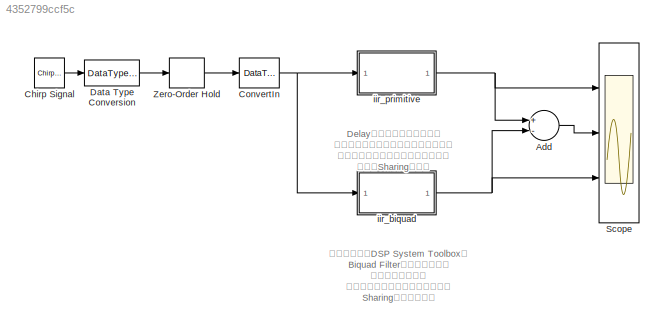
MODEL slx_4352799ccf5c
KIND model
CONFIG AbsTol = auto
CONFIG FixedStep = auto
CONFIG MaxStep = auto
CONFIG MinStep = auto
CONFIG PreLoadFcn = edit design_iir_filter
CONFIG RelTol = 1e-3
CONFIG SampleTimeConstraint = Unconstrained
CONFIG Solver = FixedStepDiscrete
CONFIG SolverMode = SingleTasking
CONFIG SolverName = FixedStepDiscrete
CONFIG StartTime = 0.0
CONFIG StopTime = 10.0
BLOCK [Sum] Add
  InputSameDT = off
  Inputs = +-
  OutDataTypeStr = Inherit: Inherit via internal rule
  Ports = [2, 1]
  SaturateOnIntegerOverflow = off
BLOCK [Reference] Chirp Signal  REF=simulink/Sources/Chirp Signal
  Ports = [0, 1]
  SourceBlock = simulink/Sources/Chirp Signal
  SourceType = chirp
BLOCK [DataTypeConversion] ConvertIn
  OutDataTypeStr = fixdt(1,16,14)
  RndMeth = Nearest
BLOCK [DataTypeConversion] Data Type Conversion
  OutDataTypeStr = fixdt(1,16,14)
  RndMeth = Nearest
  SaturateOnIntegerOverflow = off
BLOCK [Scope] Scope
  NumInputPorts = 3
  Ports = [3]
  ScopeSpecificationString = Simulink.scopes.TimeScopeBlockCfg('CurrentConfiguration', extmgr.ConfigurationSet(extmgr.Configuration('Core','General UI',true),extmgr.Configuration('Core','Source UI',true),extmgr.Configuration('Sources','WiredSimulink',true,'DataLoggingSaveFormat','StructureWithTime','DataLoggingDecimation','1','DataLoggingDecimateData',true),extmgr.Configuration('Visuals','Time Domain',true,'SerializedDisplays...<+3059ch>
BLOCK [ZeroOrderHold] Zero-Order Hold
  SampleTime = 1/1000
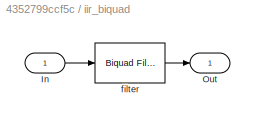
BLOCK [SubSystem] iir_biquad
  Ports = [1, 1]
  RequestExecContextInheritance = off
  Tag = BlockMethodSubSystem
  Variant = off
BLOCK [Inport] iir_biquad/In
  IconDisplay = Port number
BLOCK [Outport] iir_biquad/Out
  IconDisplay = Port number
BLOCK [Reference] iir_biquad/filter  REF=dsparch4/Biquad Filter
  Ports = [1, 1]
  SourceBlock = dsparch4/Biquad Filter
  SourceType = Biquad Filter
  UserDataPersistent = on
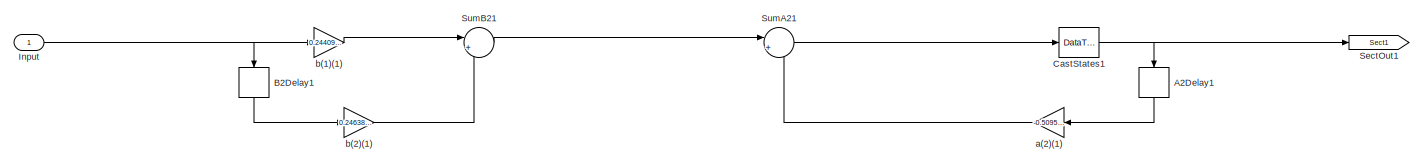
[diagram: iir_primitive - part 1/4, middle left region]
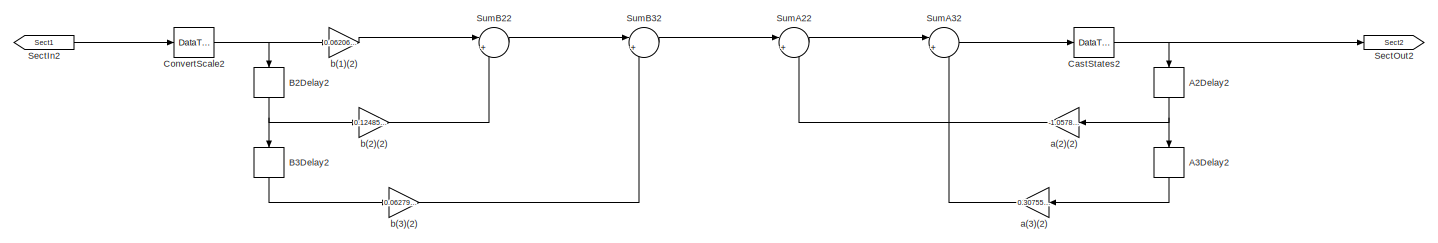
[diagram: iir_primitive - part 2/4, center side, full height]
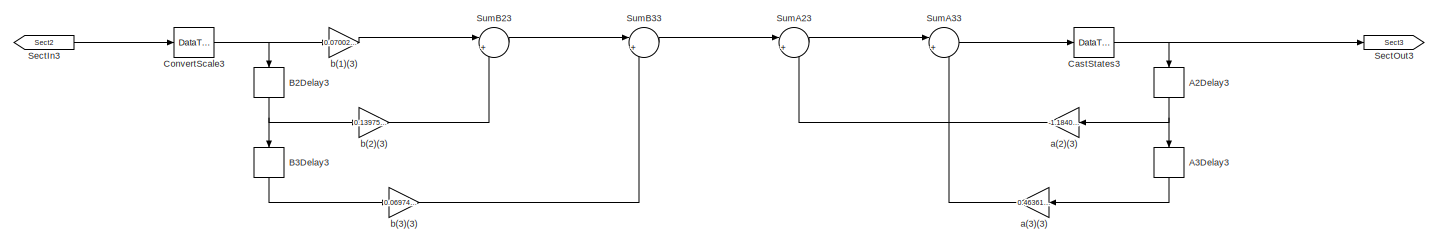
[diagram: iir_primitive - part 3/4, center side, full height]
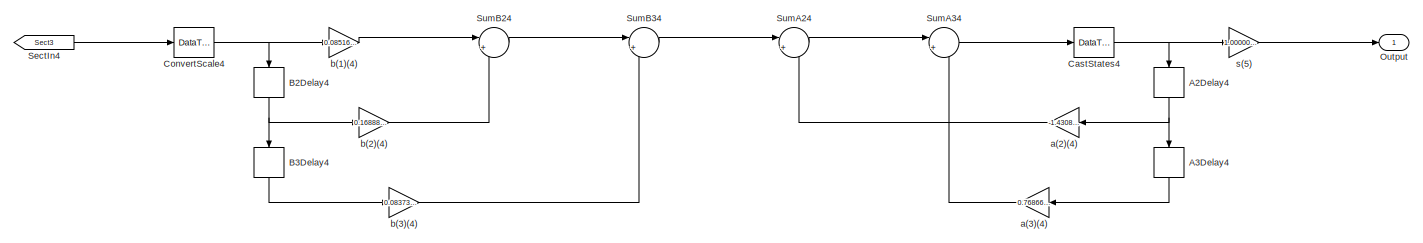
[diagram: iir_primitive - part 4/4, right side, full height]
BLOCK [SubSystem] iir_primitive
  ErrorFcn = dspFilterRealizedInBasicElemsAlgLoopErrFcnCallback
  Ports = [1, 1]
  RequestExecContextInheritance = off
  Tag = FilterWizardSubSystem
  UserDataPersistent = on
  Variant = off
BLOCK [Delay] iir_primitive/A2Delay1
  DelayLength = 1
  InitialCondition = 0
  InputPortMap = u0
  Ports = [1, 1]
BLOCK [Delay] iir_primitive/A2Delay2
  DelayLength = 1
  InitialCondition = 0
  InputPortMap = u0
  Ports = [1, 1]
BLOCK [Delay] iir_primitive/A2Delay3
  DelayLength = 1
  InitialCondition = 0
  InputPortMap = u0
  Ports = [1, 1]
BLOCK [Delay] iir_primitive/A2Delay4
  DelayLength = 1
  InitialCondition = 0
  InputPortMap = u0
  Ports = [1, 1]
BLOCK [Delay] iir_primitive/A3Delay2
  DelayLength = 1
  InitialCondition = 0
  InputPortMap = u0
  Ports = [1, 1]
BLOCK [Delay] iir_primitive/A3Delay3
  DelayLength = 1
  InitialCondition = 0
  InputPortMap = u0
  Ports = [1, 1]
BLOCK [Delay] iir_primitive/A3Delay4
  DelayLength = 1
  InitialCondition = 0
  InputPortMap = u0
  Ports = [1, 1]
BLOCK [Delay] iir_primitive/B2Delay1
  DelayLength = 1
  InitialCondition = 0
  InputPortMap = u0
  Ports = [1, 1]
BLOCK [Delay] iir_primitive/B2Delay2
  DelayLength = 1
  InitialCondition = 0
  InputPortMap = u0
  Ports = [1, 1]
BLOCK [Delay] iir_primitive/B2Delay3
  DelayLength = 1
  InitialCondition = 0
  InputPortMap = u0
  Ports = [1, 1]
BLOCK [Delay] iir_primitive/B2Delay4
  DelayLength = 1
  InitialCondition = 0
  InputPortMap = u0
  Ports = [1, 1]
BLOCK [Delay] iir_primitive/B3Delay2
  DelayLength = 1
  InitialCondition = 0
  InputPortMap = u0
  Ports = [1, 1]
BLOCK [Delay] iir_primitive/B3Delay3
  DelayLength = 1
  InitialCondition = 0
  InputPortMap = u0
  Ports = [1, 1]
BLOCK [Delay] iir_primitive/B3Delay4
  DelayLength = 1
  InitialCondition = 0
  InputPortMap = u0
  Ports = [1, 1]
BLOCK [DataTypeConversion] iir_primitive/CastStates1
  OutDataTypeStr = fixdt(1,16,14)
  RndMeth = Convergent
  SaturateOnIntegerOverflow = off
BLOCK [DataTypeConversion] iir_primitive/CastStates2
  OutDataTypeStr = fixdt(1,16,14)
  RndMeth = Convergent
  SaturateOnIntegerOverflow = off
BLOCK [DataTypeConversion] iir_primitive/CastStates3
  OutDataTypeStr = fixdt(1,16,14)
  RndMeth = Convergent
  SaturateOnIntegerOverflow = off
BLOCK [DataTypeConversion] iir_primitive/CastStates4
  OutDataTypeStr = fixdt(1,16,14)
  RndMeth = Convergent
  SaturateOnIntegerOverflow = off
BLOCK [DataTypeConversion] iir_primitive/ConvertScale2
  OutDataTypeStr = fixdt(1,16,14)
  RndMeth = Convergent
  SaturateOnIntegerOverflow = off
BLOCK [DataTypeConversion] iir_primitive/ConvertScale3
  OutDataTypeStr = fixdt(1,16,14)
  RndMeth = Convergent
  SaturateOnIntegerOverflow = off
BLOCK [DataTypeConversion] iir_primitive/ConvertScale4
  OutDataTypeStr = fixdt(1,16,14)
  RndMeth = Convergent
  SaturateOnIntegerOverflow = off
BLOCK [Inport] iir_primitive/Input
  IconDisplay = Port number
BLOCK [Outport] iir_primitive/Output
  IconDisplay = Port number
BLOCK [From] iir_primitive/SectIn2
  GotoTag = Sect1
BLOCK [From] iir_primitive/SectIn3
  GotoTag = Sect2
BLOCK [From] iir_primitive/SectIn4
  GotoTag = Sect3
BLOCK [Goto] iir_primitive/SectOut1
  GotoTag = Sect1
BLOCK [Goto] iir_primitive/SectOut2
  GotoTag = Sect2
BLOCK [Goto] iir_primitive/SectOut3
  GotoTag = Sect3
BLOCK [Sum] iir_primitive/SumA21
  AccumDataTypeStr = fixdt(1,40,30)
  IconShape = round
  InputSameDT = off
  Inputs = |+-
  OutDataTypeStr = fixdt(1,40,30)
  Ports = [2, 1]
  RndMeth = Convergent
  SaturateOnIntegerOverflow = off
BLOCK [Sum] iir_primitive/SumA22
  AccumDataTypeStr = fixdt(1,40,30)
  IconShape = round
  InputSameDT = off
  Inputs = |+-
  OutDataTypeStr = fixdt(1,40,30)
  Ports = [2, 1]
  RndMeth = Convergent
  SaturateOnIntegerOverflow = off
BLOCK [Sum] iir_primitive/SumA23
  AccumDataTypeStr = fixdt(1,40,30)
  IconShape = round
  InputSameDT = off
  Inputs = |+-
  OutDataTypeStr = fixdt(1,40,30)
  Ports = [2, 1]
  RndMeth = Convergent
  SaturateOnIntegerOverflow = off
BLOCK [Sum] iir_primitive/SumA24
  AccumDataTypeStr = fixdt(1,40,30)
  IconShape = round
  InputSameDT = off
  Inputs = |+-
  OutDataTypeStr = fixdt(1,40,30)
  Ports = [2, 1]
  RndMeth = Convergent
  SaturateOnIntegerOverflow = off
BLOCK [Sum] iir_primitive/SumA32
  AccumDataTypeStr = fixdt(1,40,30)
  IconShape = round
  InputSameDT = off
  Inputs = |+-
  OutDataTypeStr = fixdt(1,40,30)
  Ports = [2, 1]
  RndMeth = Convergent
  SaturateOnIntegerOverflow = off
BLOCK [Sum] iir_primitive/SumA33
  AccumDataTypeStr = fixdt(1,40,30)
  IconShape = round
  InputSameDT = off
  Inputs = |+-
  OutDataTypeStr = fixdt(1,40,30)
  Ports = [2, 1]
  RndMeth = Convergent
  SaturateOnIntegerOverflow = off
BLOCK [Sum] iir_primitive/SumA34
  AccumDataTypeStr = fixdt(1,40,30)
  IconShape = round
  InputSameDT = off
  Inputs = |+-
  OutDataTypeStr = fixdt(1,40,30)
  Ports = [2, 1]
  RndMeth = Convergent
  SaturateOnIntegerOverflow = off
BLOCK [Sum] iir_primitive/SumB21
  AccumDataTypeStr = fixdt(1,40,33)
  IconShape = round
  InputSameDT = off
  Inputs = |++
  OutDataTypeStr = fixdt(1,40,33)
  Ports = [2, 1]
  RndMeth = Convergent
  SaturateOnIntegerOverflow = off
BLOCK [Sum] iir_primitive/SumB22
  AccumDataTypeStr = fixdt(1,40,33)
  IconShape = round
  InputSameDT = off
  Inputs = |++
  OutDataTypeStr = fixdt(1,40,33)
  Ports = [2, 1]
  RndMeth = Convergent
  SaturateOnIntegerOverflow = off
BLOCK [Sum] iir_primitive/SumB23
  AccumDataTypeStr = fixdt(1,40,33)
  IconShape = round
  InputSameDT = off
  Inputs = |++
  OutDataTypeStr = fixdt(1,40,33)
  Ports = [2, 1]
  RndMeth = Convergent
  SaturateOnIntegerOverflow = off
BLOCK [Sum] iir_primitive/SumB24
  AccumDataTypeStr = fixdt(1,40,33)
  IconShape = round
  InputSameDT = off
  Inputs = |++
  OutDataTypeStr = fixdt(1,40,33)
  Ports = [2, 1]
  RndMeth = Convergent
  SaturateOnIntegerOverflow = off
BLOCK [Sum] iir_primitive/SumB32
  AccumDataTypeStr = fixdt(1,40,33)
  IconShape = round
  InputSameDT = off
  Inputs = |++
  OutDataTypeStr = fixdt(1,40,33)
  Ports = [2, 1]
  RndMeth = Convergent
  SaturateOnIntegerOverflow = off
BLOCK [Sum] iir_primitive/SumB33
  AccumDataTypeStr = fixdt(1,40,33)
  IconShape = round
  InputSameDT = off
  Inputs = |++
  OutDataTypeStr = fixdt(1,40,33)
  Ports = [2, 1]
  RndMeth = Convergent
  SaturateOnIntegerOverflow = off
BLOCK [Sum] iir_primitive/SumB34
  AccumDataTypeStr = fixdt(1,40,33)
  IconShape = round
  InputSameDT = off
  Inputs = |++
  OutDataTypeStr = fixdt(1,40,33)
  Ports = [2, 1]
  RndMeth = Convergent
  SaturateOnIntegerOverflow = off
BLOCK [Gain] iir_primitive/a(2)(1)
  Gain = -0.50952544949558054
  OutDataTypeStr = fixdt(1,34,30)
  ParamDataTypeStr = fixdt(1,18,16)
  RndMeth = Convergent
  SaturateOnIntegerOverflow = off
BLOCK [Gain] iir_primitive/a(2)(2)
  Gain = -1.0578315579506707
  OutDataTypeStr = fixdt(1,34,30)
  ParamDataTypeStr = fixdt(1,18,16)
  RndMeth = Convergent
  SaturateOnIntegerOverflow = off
BLOCK [Gain] iir_primitive/a(2)(3)
  Gain = -1.1840906753873925
  OutDataTypeStr = fixdt(1,34,30)
  ParamDataTypeStr = fixdt(1,18,16)
  RndMeth = Convergent
  SaturateOnIntegerOverflow = off
BLOCK [Gain] iir_primitive/a(2)(4)
  Gain = -1.430882406486973
  OutDataTypeStr = fixdt(1,34,30)
  ParamDataTypeStr = fixdt(1,18,16)
  RndMeth = Convergent
  SaturateOnIntegerOverflow = off
BLOCK [Gain] iir_primitive/a(3)(2)
  Gain = 0.30755171437177825
  OutDataTypeStr = fixdt(1,34,30)
  ParamDataTypeStr = fixdt(1,18,16)
  RndMeth = Convergent
  SaturateOnIntegerOverflow = off
BLOCK [Gain] iir_primitive/a(3)(3)
  Gain = 0.46361656630317183
  OutDataTypeStr = fixdt(1,34,30)
  ParamDataTypeStr = fixdt(1,18,16)
  RndMeth = Convergent
  SaturateOnIntegerOverflow = off
BLOCK [Gain] iir_primitive/a(3)(4)
  Gain = 0.76866792222623082
  OutDataTypeStr = fixdt(1,34,30)
  ParamDataTypeStr = fixdt(1,18,16)
  RndMeth = Convergent
  SaturateOnIntegerOverflow = off
BLOCK [Gain] iir_primitive/b(1)(1)
  Gain = 0.24409398394376244
  OutDataTypeStr = fixdt(1,34,33)
  ParamDataTypeStr = fixdt(1,18,19)
  RndMeth = Convergent
  SaturateOnIntegerOverflow = off
BLOCK [Gain] iir_primitive/b(1)(2)
  Gain = 0.062065195388954407
  OutDataTypeStr = fixdt(1,34,33)
  ParamDataTypeStr = fixdt(1,18,19)
  RndMeth = Convergent
  SaturateOnIntegerOverflow = off
BLOCK [Gain] iir_primitive/b(1)(3)
  Gain = 0.070025174293722847
  OutDataTypeStr = fixdt(1,34,33)
  ParamDataTypeStr = fixdt(1,18,19)
  RndMeth = Convergent
  SaturateOnIntegerOverflow = off
BLOCK [Gain] iir_primitive/b(1)(4)
  Gain = 0.085165513395946066
  OutDataTypeStr = fixdt(1,34,33)
  ParamDataTypeStr = fixdt(1,18,19)
  RndMeth = Convergent
  SaturateOnIntegerOverflow = off
BLOCK [Gain] iir_primitive/b(2)(1)
  Gain = 0.24638056656065699
  OutDataTypeStr = fixdt(1,34,33)
  ParamDataTypeStr = fixdt(1,18,19)
  RndMeth = Convergent
  SaturateOnIntegerOverflow = off
BLOCK [Gain] iir_primitive/b(2)(2)
  Gain = 0.12485735055712442
  OutDataTypeStr = fixdt(1,34,33)
  ParamDataTypeStr = fixdt(1,18,19)
  RndMeth = Convergent
  SaturateOnIntegerOverflow = off
BLOCK [Gain] iir_primitive/b(2)(3)
  Gain = 0.13975985825982012
  OutDataTypeStr = fixdt(1,34,33)
  ParamDataTypeStr = fixdt(1,18,19)
  RndMeth = Convergent
  SaturateOnIntegerOverflow = off
BLOCK [Gain] iir_primitive/b(2)(4)
  Gain = 0.16888899552149816
  OutDataTypeStr = fixdt(1,34,33)
  ParamDataTypeStr = fixdt(1,18,19)
  RndMeth = Convergent
  SaturateOnIntegerOverflow = off
BLOCK [Gain] iir_primitive/b(3)(2)
  Gain = 0.062797610475028798
  OutDataTypeStr = fixdt(1,34,33)
  ParamDataTypeStr = fixdt(1,18,19)
  RndMeth = Convergent
  SaturateOnIntegerOverflow = off
BLOCK [Gain] iir_primitive/b(3)(3)
  Gain = 0.069740858362236438
  OutDataTypeStr = fixdt(1,34,33)
  ParamDataTypeStr = fixdt(1,18,19)
  RndMeth = Convergent
  SaturateOnIntegerOverflow = off
BLOCK [Gain] iir_primitive/b(3)(4)
  Gain = 0.083731006821812726
  OutDataTypeStr = fixdt(1,34,33)
  ParamDataTypeStr = fixdt(1,18,19)
  RndMeth = Convergent
  SaturateOnIntegerOverflow = off
BLOCK [Gain] iir_primitive/s(5)
  Gain = 1.0000000000006222
  OutDataTypeStr = fixdt(1,16,14)
  ParamDataTypeStr = fixdt(1,18,17)
  RndMeth = Convergent
  SaturateOnIntegerOverflow = off
ANNOTATION (root): Delay、乗算、加算器などの プリミティブなブロックを使って構成 同じ固定小数点設定の乗算ブロック のみがSharingの対象
ANNOTATION (root): 抽象度の高いDSP System Toolboxの Biquad Filterブロックを使用 構造の変更が容易 乗算器の固定小数点設定は同じで Sharingの設定も容易
LINE Add:1 -> Scope:2
LINE Chirp Signal:1 -> Data Type Conversion:1
NET ConvertIn:1 -> iir_biquad:1, iir_primitive:1
LINE Data Type Conversion:1 -> Zero-Order Hold:1
LINE Zero-Order Hold:1 -> ConvertIn:1
LINE iir_biquad/In:1 -> iir_biquad/filter:1
LINE iir_biquad/filter:1 -> iir_biquad/Out:1
NET iir_biquad:1 -> Add:2, Scope:3
LINE iir_primitive/A2Delay1:1 -> iir_primitive/a(2)(1):1
NET iir_primitive/A2Delay2:1 -> iir_primitive/A3Delay2:1, iir_primitive/a(2)(2):1
NET iir_primitive/A2Delay3:1 -> iir_primitive/A3Delay3:1, iir_primitive/a(2)(3):1
NET iir_primitive/A2Delay4:1 -> iir_primitive/A3Delay4:1, iir_primitive/a(2)(4):1
LINE iir_primitive/A3Delay2:1 -> iir_primitive/a(3)(2):1
LINE iir_primitive/A3Delay3:1 -> iir_primitive/a(3)(3):1
LINE iir_primitive/A3Delay4:1 -> iir_primitive/a(3)(4):1
LINE iir_primitive/B2Delay1:1 -> iir_primitive/b(2)(1):1
NET iir_primitive/B2Delay2:1 -> iir_primitive/B3Delay2:1, iir_primitive/b(2)(2):1
NET iir_primitive/B2Delay3:1 -> iir_primitive/B3Delay3:1, iir_primitive/b(2)(3):1
NET iir_primitive/B2Delay4:1 -> iir_primitive/B3Delay4:1, iir_primitive/b(2)(4):1
LINE iir_primitive/B3Delay2:1 -> iir_primitive/b(3)(2):1
LINE iir_primitive/B3Delay3:1 -> iir_primitive/b(3)(3):1
LINE iir_primitive/B3Delay4:1 -> iir_primitive/b(3)(4):1
NET iir_primitive/CastStates1:1 -> iir_primitive/A2Delay1:1, iir_primitive/SectOut1:1
NET iir_primitive/CastStates2:1 -> iir_primitive/A2Delay2:1, iir_primitive/SectOut2:1
NET iir_primitive/CastStates3:1 -> iir_primitive/A2Delay3:1, iir_primitive/SectOut3:1
NET iir_primitive/CastStates4:1 -> iir_primitive/A2Delay4:1, iir_primitive/s(5):1
NET iir_primitive/ConvertScale2:1 -> iir_primitive/B2Delay2:1, iir_primitive/b(1)(2):1
NET iir_primitive/ConvertScale3:1 -> iir_primitive/B2Delay3:1, iir_primitive/b(1)(3):1
NET iir_primitive/ConvertScale4:1 -> iir_primitive/B2Delay4:1, iir_primitive/b(1)(4):1
NET iir_primitive/Input:1 -> iir_primitive/B2Delay1:1, iir_primitive/b(1)(1):1
LINE iir_primitive/SectIn2:1 -> iir_primitive/ConvertScale2:1
LINE iir_primitive/SectIn3:1 -> iir_primitive/ConvertScale3:1
LINE iir_primitive/SectIn4:1 -> iir_primitive/ConvertScale4:1
LINE iir_primitive/SumA21:1 -> iir_primitive/CastStates1:1
LINE iir_primitive/SumA22:1 -> iir_primitive/SumA32:1
LINE iir_primitive/SumA23:1 -> iir_primitive/SumA33:1
LINE iir_primitive/SumA24:1 -> iir_primitive/SumA34:1
LINE iir_primitive/SumA32:1 -> iir_primitive/CastStates2:1
LINE iir_primitive/SumA33:1 -> iir_primitive/CastStates3:1
LINE iir_primitive/SumA34:1 -> iir_primitive/CastStates4:1
LINE iir_primitive/SumB21:1 -> iir_primitive/SumA21:1
LINE iir_primitive/SumB22:1 -> iir_primitive/SumB32:1
LINE iir_primitive/SumB23:1 -> iir_primitive/SumB33:1
LINE iir_primitive/SumB24:1 -> iir_primitive/SumB34:1
LINE iir_primitive/SumB32:1 -> iir_primitive/SumA22:1
LINE iir_primitive/SumB33:1 -> iir_primitive/SumA23:1
LINE iir_primitive/SumB34:1 -> iir_primitive/SumA24:1
LINE iir_primitive/a(2)(1):1 -> iir_primitive/SumA21:2
LINE iir_primitive/a(2)(2):1 -> iir_primitive/SumA22:2
LINE iir_primitive/a(2)(3):1 -> iir_primitive/SumA23:2
LINE iir_primitive/a(2)(4):1 -> iir_primitive/SumA24:2
LINE iir_primitive/a(3)(2):1 -> iir_primitive/SumA32:2
LINE iir_primitive/a(3)(3):1 -> iir_primitive/SumA33:2
LINE iir_primitive/a(3)(4):1 -> iir_primitive/SumA34:2
LINE iir_primitive/b(1)(1):1 -> iir_primitive/SumB21:1
LINE iir_primitive/b(1)(2):1 -> iir_primitive/SumB22:1
LINE iir_primitive/b(1)(3):1 -> iir_primitive/SumB23:1
LINE iir_primitive/b(1)(4):1 -> iir_primitive/SumB24:1
LINE iir_primitive/b(2)(1):1 -> iir_primitive/SumB21:2
LINE iir_primitive/b(2)(2):1 -> iir_primitive/SumB22:2
LINE iir_primitive/b(2)(3):1 -> iir_primitive/SumB23:2
LINE iir_primitive/b(2)(4):1 -> iir_primitive/SumB24:2
LINE iir_primitive/b(3)(2):1 -> iir_primitive/SumB32:2
LINE iir_primitive/b(3)(3):1 -> iir_primitive/SumB33:2
LINE iir_primitive/b(3)(4):1 -> iir_primitive/SumB34:2
LINE iir_primitive/s(5):1 -> iir_primitive/Output:1
NET iir_primitive:1 -> Add:1, Scope:1
note: NET lines group one-source signal fan-out (src -> all destinations, sorted); 1:1 wires keep LINE
